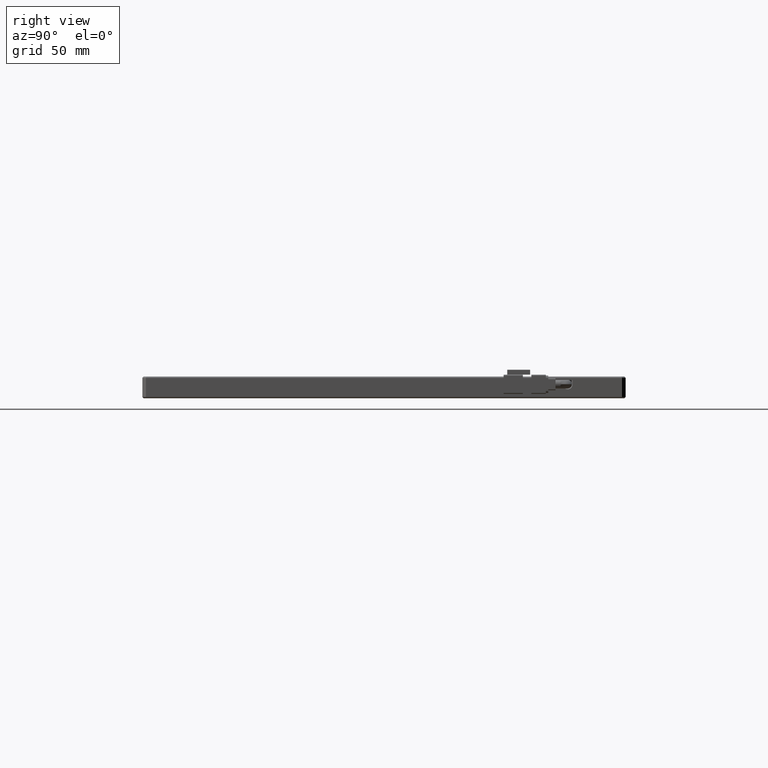
[diagram: clean part render]
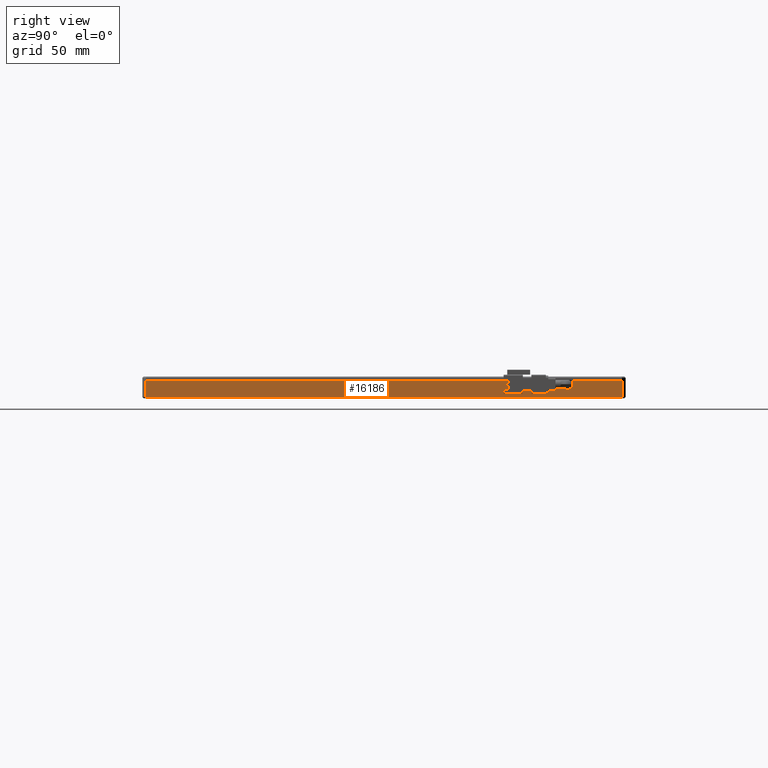
[diagram: same view with one face highlighted and labeled with its STEP entity id]
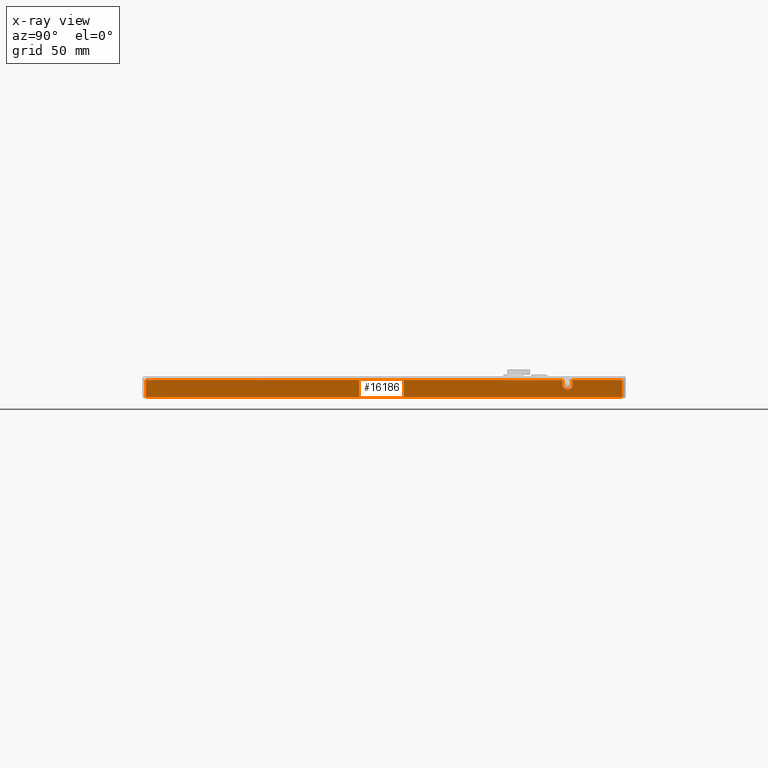
[diagram: x-ray of the same camera — body ghosted, the highlighted face saturated]
A machine part, right view. The second image highlights one B-rep face of the part: STEP entity #16186.
The next image is the same camera in x-ray: the body ghosted, the highlighted face saturated — about 0% of this face is hidden behind the body in this view.
In plain terms, the highlighted planar face has unit normal (-1, 0, 0).
Its self-contained STEP definition (entity closure, byte-faithful):
#103 = VERTEX_POINT ( 'NONE', #4652 ) ;
#226 = CARTESIAN_POINT ( 'NONE',  ( 55.78104460093896900, 113.4508215962440700, 4.499999999999999100 ) ) ;
#1023 = CIRCLE ( 'NONE', #15404, 2.100000000019294900 ) ;
#1687 = CARTESIAN_POINT ( 'NONE',  ( 55.78104460093896900, -85.04917840375587400, -2.500000000000001300 ) ) ;
#1857 = DIRECTION ( 'NONE',  ( -0.0000000000000000000, -1.000000000000000000, -0.0000000000000000000 ) ) ;
#3151 = VECTOR ( 'NONE', #28196, 1000.000000000000000 ) ;
#3563 = VECTOR ( 'NONE', #4308, 1000.000000000000000 ) ;
#3714 = AXIS2_PLACEMENT_3D ( 'NONE', #4075, #21292, #6502 ) ;
#3781 = CARTESIAN_POINT ( 'NONE',  ( 55.78104460093896900, 88.85082159624411700, 4.499999999999999100 ) ) ;
#3951 = ORIENTED_EDGE ( 'NONE', *, *, #25025, .F. ) ;
#4075 = CARTESIAN_POINT ( 'NONE',  ( 55.78104460093896900, -85.04917840375587400, 4.499999999999999100 ) ) ;
#4308 = DIRECTION ( 'NONE',  ( -0.0000000000000000000, -1.000000000000000000, -0.0000000000000000000 ) ) ;
#4335 = PLANE ( 'NONE',  #3714 ) ;
#4558 = EDGE_CURVE ( 'NONE', #6987, #103, #15570, .T. ) ;
#4648 = CARTESIAN_POINT ( 'NONE',  ( 55.78104460093896900, -83.54917840375587400, 4.499999999999999100 ) ) ;
#4652 = CARTESIAN_POINT ( 'NONE',  ( 55.78104460093899800, 93.05082159624419100, 4.499999999999999100 ) ) ;
#5198 = EDGE_CURVE ( 'NONE', #25348, #28259, #6194, .T. ) ;
#5994 = CARTESIAN_POINT ( 'NONE',  ( 55.78104460093896900, 113.4508215962440500, 4.499999999999999100 ) ) ;
#6194 = LINE ( 'NONE', #15655, #13570 ) ;
#6467 = VERTEX_POINT ( 'NONE', #24075 ) ;
#6502 = DIRECTION ( 'NONE',  ( 0.0000000000000000000, 0.0000000000000000000, 1.000000000000000000 ) ) ;
#6857 = CARTESIAN_POINT ( 'NONE',  ( 55.78104460093896900, -83.54917840375587400, -2.500000000000001800 ) ) ;
#6987 = VERTEX_POINT ( 'NONE', #25040 ) ;
#8991 = LINE ( 'NONE', #1687, #15578 ) ;
#9275 = VERTEX_POINT ( 'NONE', #20467 ) ;
#9701 = LINE ( 'NONE', #5994, #3151 ) ;
#12789 = ORIENTED_EDGE ( 'NONE', *, *, #28634, .T. ) ;
#12792 = VERTEX_POINT ( 'NONE', #21339 ) ;
#12817 = LINE ( 'NONE', #31515, #25914 ) ;
#13244 = EDGE_CURVE ( 'NONE', #12792, #9275, #17418, .T. ) ;
#13483 = DIRECTION ( 'NONE',  ( 0.0000000000000000000, 0.0000000000000000000, 1.000000000000000000 ) ) ;
#13570 = VECTOR ( 'NONE', #28008, 1000.000000000000000 ) ;
#13776 = ORIENTED_EDGE ( 'NONE', *, *, #21167, .T. ) ;
#13910 = DIRECTION ( 'NONE',  ( 1.000000000000000000, 6.608470384970679400E-015, -0.0000000000000000000 ) ) ;
#14456 = ORIENTED_EDGE ( 'NONE', *, *, #4558, .F. ) ;
#14595 = ORIENTED_EDGE ( 'NONE', *, *, #5198, .F. ) ;
#14965 = EDGE_CURVE ( 'NONE', #9275, #6987, #1023, .T. ) ;
#15404 = AXIS2_PLACEMENT_3D ( 'NONE', #28669, #13910, #31188 ) ;
#15570 = LINE ( 'NONE', #25959, #27878 ) ;
#15578 = VECTOR ( 'NONE', #28624, 1000.000000000000000 ) ;
#15655 = CARTESIAN_POINT ( 'NONE',  ( 55.78104460093896900, -83.54917840375587400, 4.499999999999999100 ) ) ;
#16186 = ADVANCED_FACE ( 'NONE', ( #18114 ), #4335, .F. ) ;
#17418 = LINE ( 'NONE', #3781, #30560 ) ;
#17666 = EDGE_CURVE ( 'NONE', #6467, #25348, #8991, .T. ) ;
#18114 = FACE_OUTER_BOUND ( 'NONE', #30344, .T. ) ;
#19110 = ORIENTED_EDGE ( 'NONE', *, *, #13244, .F. ) ;
#20467 = CARTESIAN_POINT ( 'NONE',  ( 55.78104460094465400, 88.85082159627337700, 2.799999999999995800 ) ) ;
#21005 = DIRECTION ( 'NONE',  ( -0.0000000000000000000, -0.0000000000000000000, -1.000000000000000000 ) ) ;
#21167 = EDGE_CURVE ( 'NONE', #27155, #103, #12817, .T. ) ;
#21292 = DIRECTION ( 'NONE',  ( -1.000000000000000000, 0.0000000000000000000, 0.0000000000000000000 ) ) ;
#21339 = CARTESIAN_POINT ( 'NONE',  ( 55.78104460093899800, 88.85082159624414500, 4.499999999999999100 ) ) ;
#23217 = LINE ( 'NONE', #26399, #3563 ) ;
#24075 = CARTESIAN_POINT ( 'NONE',  ( 55.78104460093896900, 113.4508215962441500, -2.500000000000006700 ) ) ;
#25025 = EDGE_CURVE ( 'NONE', #27155, #6467, #9701, .T. ) ;
#25040 = CARTESIAN_POINT ( 'NONE',  ( 55.78104460098443000, 93.05082159626483900, 2.800000000000004300 ) ) ;
#25348 = VERTEX_POINT ( 'NONE', #6857 ) ;
#25914 = VECTOR ( 'NONE', #1857, 1000.000000000000000 ) ;
#25959 = CARTESIAN_POINT ( 'NONE',  ( 55.78104460093896900, 93.05082159624419100, 4.499999999999999100 ) ) ;
#26399 = CARTESIAN_POINT ( 'NONE',  ( 55.78104460093896900, 114.9508215962441300, 4.499999999999999100 ) ) ;
#27155 = VERTEX_POINT ( 'NONE', #226 ) ;
#27878 = VECTOR ( 'NONE', #13483, 1000.000000000000000 ) ;
#28008 = DIRECTION ( 'NONE',  ( 0.0000000000000000000, 0.0000000000000000000, 1.000000000000000000 ) ) ;
#28196 = DIRECTION ( 'NONE',  ( -0.0000000000000000000, -0.0000000000000000000, -1.000000000000000000 ) ) ;
#28259 = VERTEX_POINT ( 'NONE', #4648 ) ;
#28624 = DIRECTION ( 'NONE',  ( -0.0000000000000000000, -1.000000000000000000, -0.0000000000000000000 ) ) ;
#28634 = EDGE_CURVE ( 'NONE', #12792, #28259, #23217, .T. ) ;
#28669 = CARTESIAN_POINT ( 'NONE',  ( 55.78104460098445800, 90.95082159624419700, 2.799999999999998900 ) ) ;
#30344 = EDGE_LOOP ( 'NONE', ( #32003, #19110, #12789, #14595, #31744, #3951, #13776, #14456 ) ) ;
#30560 = VECTOR ( 'NONE', #21005, 1000.000000000000000 ) ;
#31188 = DIRECTION ( 'NONE',  ( -6.608470384612831600E-015, 1.000000000000000000, 0.0000000000000000000 ) ) ;
#31515 = CARTESIAN_POINT ( 'NONE',  ( 55.78104460093899800, 114.9508215962441300, 4.499999999999999100 ) ) ;
#31744 = ORIENTED_EDGE ( 'NONE', *, *, #17666, .F. ) ;
#32003 = ORIENTED_EDGE ( 'NONE', *, *, #14965, .F. ) ;